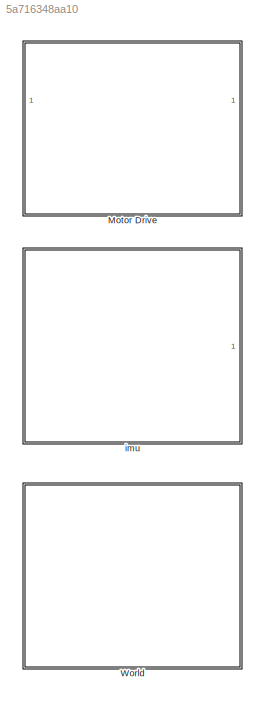
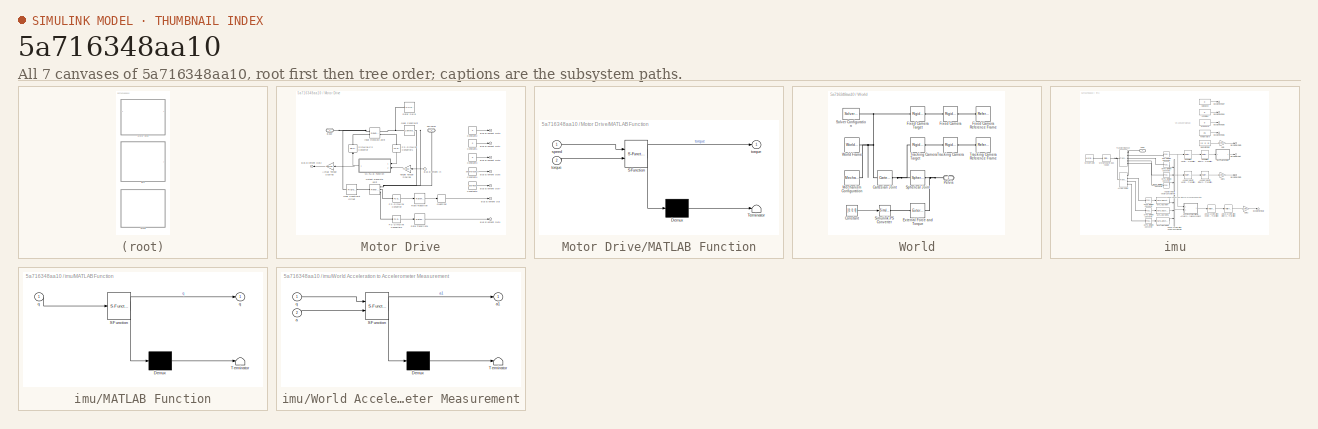
[diagram: thumbnail index - all 7 canvases of the model, root first then tree order]
MODEL slx_5a716348aa10
KIND model
CONFIG AbsTol = auto
CONFIG EnableMultiTasking = off
CONFIG FixedStep = auto
CONFIG MaxStep = auto
CONFIG MinStep = auto
CONFIG RelTol = 1e-3
CONFIG SampleTimeConstraint = Unconstrained
CONFIG Solver = VariableStepAuto
CONFIG SolverName = VariableStepAuto
CONFIG StartTime = 0.0
CONFIG StopTime = 10.0
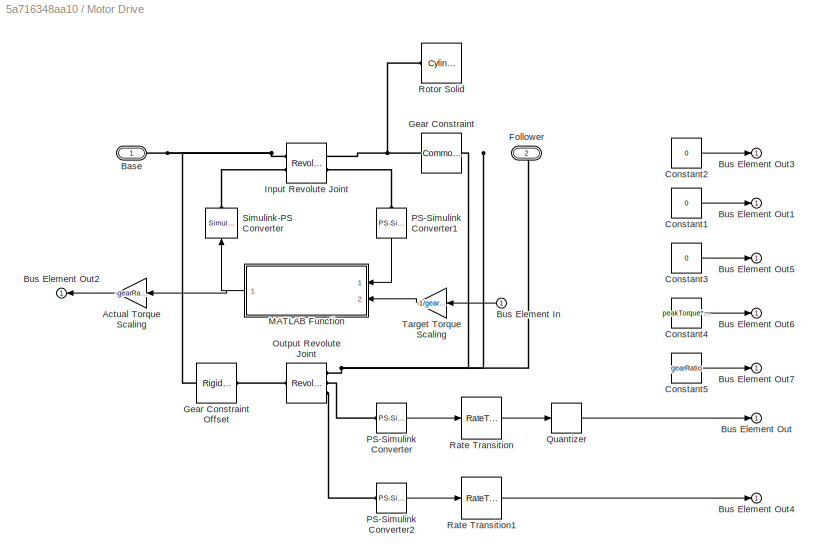
BLOCK [SubSystem] Motor Drive
  AncestorBlock = ComponentLibrary/Simulation/Elmo Drive
  Ports = [1, 1, 0, 0, 0, 1, 1]
  RequestExecContextInheritance = off
BLOCK [Gain] Motor Drive/Actual Torque Scaling
  Gain = -gearRatio
  OutDataTypeStr = Inherit: Inherit via internal rule
  ParamDataTypeStr = Inherit: Inherit via internal rule
  SaturateOnIntegerOverflow = off
BLOCK [PMIOPort] Motor Drive/Base
  Side = Left
BLOCK [Inport] Motor Drive/Bus Element In
  IconDisplay = Port number
BLOCK [Outport] Motor Drive/Bus Element Out
  IconDisplay = Port number
  VectorParamsAs1DForOutWhenUnconnected = off
BLOCK [Outport] Motor Drive/Bus Element Out1
  IconDisplay = Port number
  VectorParamsAs1DForOutWhenUnconnected = off
BLOCK [Outport] Motor Drive/Bus Element Out2
  IconDisplay = Port number
  VectorParamsAs1DForOutWhenUnconnected = off
BLOCK [Outport] Motor Drive/Bus Element Out3
  IconDisplay = Port number
  VectorParamsAs1DForOutWhenUnconnected = off
BLOCK [Outport] Motor Drive/Bus Element Out4
  IconDisplay = Port number
  VectorParamsAs1DForOutWhenUnconnected = off
BLOCK [Outport] Motor Drive/Bus Element Out5
  IconDisplay = Port number
  VectorParamsAs1DForOutWhenUnconnected = off
BLOCK [Outport] Motor Drive/Bus Element Out6
  IconDisplay = Port number
  VectorParamsAs1DForOutWhenUnconnected = off
BLOCK [Outport] Motor Drive/Bus Element Out7
  IconDisplay = Port number
  VectorParamsAs1DForOutWhenUnconnected = off
BLOCK [Constant] Motor Drive/Constant1
  Value = 0
BLOCK [Constant] Motor Drive/Constant2
  OutDataTypeStr = uint16
  Value = 0
BLOCK [Constant] Motor Drive/Constant3
  Value = 0
BLOCK [Constant] Motor Drive/Constant4
  Value = peakTorque*gearRatio
BLOCK [Constant] Motor Drive/Constant5
  Value = gearRatio
BLOCK [PMIOPort] Motor Drive/Follower
  Port = 2
  Side = Right
BLOCK [Reference] Motor Drive/Gear Constraint  REF=sm_lib/Gears and
Couplings/Gears/Common Gear
Constraint
  Ports = [0, 0, 0, 0, 0, 1, 1]
  SourceBlock = sm_lib/Gears and\nCouplings/Gears/Common Gear\nConstraint
  SourceProductBaseCode = MS
  SourceProductName = Simscape Multibody
  SourceType = Common Gear\nConstraint
BLOCK [Reference] Motor Drive/Gear Constraint Offset  REF=sm_lib/Frames and
Transforms/Rigid
Transform
  Ports = [0, 0, 0, 0, 0, 1, 1]
  SourceBlock = sm_lib/Frames and\nTransforms/Rigid\nTransform
  SourceProductBaseCode = MS
  SourceProductName = Simscape Multibody
  SourceType = Rigid\nTransform
BLOCK [Reference] Motor Drive/Input Revolute Joint  REF=sm_lib/Joints/Revolute Joint
  Ports = [0, 0, 0, 0, 0, 2, 2]
  SourceBlock = sm_lib/Joints/Revolute Joint
  SourceProductBaseCode = MS
  SourceProductName = Simscape Multibody
  SourceType = Revolute Joint
BLOCK [SubSystem] Motor Drive/MATLAB Function
  ErrorFcn = Stateflow.Translate.translate
  PermitHierarchicalResolution = ExplicitOnly
  Ports = [2, 1]
  RequestExecContextInheritance = off
  SFBlockType = MATLAB Function
  TreatAsAtomicUnit = on
BLOCK [Demux] Motor Drive/MATLAB Function/ Demux 
  Outputs = 1
  Ports = [1, 1]
BLOCK [S-Function] Motor Drive/MATLAB Function/ SFunction 
  EnableBusSupport = off
  FunctionName = sf_sfun
  Parameters = peakSpeed,peakTorque
  PortCounts = [2 2]
  Ports = [2, 2]
  SFcnIsStateOwnerBlock = off
  SFunctionDeploymentMode = off
  Tag = Stateflow S-Function 2
BLOCK [Terminator] Motor Drive/MATLAB Function/ Terminator 
BLOCK [Inport] Motor Drive/MATLAB Function/speed
  IconDisplay = Port number
BLOCK [Outport] Motor Drive/MATLAB Function/torque
  IconDisplay = Port number
  VectorParamsAs1DForOutWhenUnconnected = off
BLOCK [Inport] Motor Drive/MATLAB Function/torque 
  IconDisplay = Port number
  Port = 2
BLOCK [Reference] Motor Drive/Output Revolute Joint  REF=sm_lib/Joints/Revolute Joint
  Ports = [0, 0, 0, 0, 0, 1, 3]
  SourceBlock = sm_lib/Joints/Revolute Joint
  SourceProductBaseCode = MS
  SourceProductName = Simscape Multibody
  SourceType = Revolute Joint
BLOCK [Reference] Motor Drive/PS-Simulink Converter  REF=nesl_utility/PS-Simulink
Converter
  Ports = [0, 1, 0, 0, 0, 1]
  SourceBlock = nesl_utility/PS-Simulink\nConverter
  SourceProductBaseCode = SS
  SourceProductName = Simscape
  SourceType = PS-Simulink\nConverter
BLOCK [Reference] Motor Drive/PS-Simulink Converter1  REF=nesl_utility/PS-Simulink
Converter
  Ports = [0, 1, 0, 0, 0, 1]
  SourceBlock = nesl_utility/PS-Simulink\nConverter
  SourceProductBaseCode = SS
  SourceProductName = Simscape
  SourceType = PS-Simulink\nConverter
BLOCK [Reference] Motor Drive/PS-Simulink Converter2  REF=nesl_utility/PS-Simulink
Converter
  Ports = [0, 1, 0, 0, 0, 1]
  SourceBlock = nesl_utility/PS-Simulink\nConverter
  SourceProductBaseCode = SS
  SourceProductName = Simscape
  SourceType = PS-Simulink\nConverter
BLOCK [Quantizer] Motor Drive/Quantizer
  QuantizationInterval = (2*pi)/(encoderResolution*gearRatio)
BLOCK [RateTransition] Motor Drive/Rate Transition
  Deterministic = off
  InitialCondition = initialPosition
  OutPortSampleTimeOpt = Inherit
BLOCK [RateTransition] Motor Drive/Rate Transition1
  Deterministic = off
  InitialCondition = initialPosition
  OutPortSampleTimeOpt = Inherit
BLOCK [Reference] Motor Drive/Rotor Solid  REF=sm_lib/Body Elements/Cylindrical Solid
  Ports = [0, 0, 0, 0, 0, 0, 1]
  SourceBlock = sm_lib/Body Elements/Cylindrical Solid
  SourceProductBaseCode = MS
  SourceProductName = Simscape Multibody
  SourceType = Cylindrical Solid
BLOCK [Reference] Motor Drive/Simulink-PS Converter  REF=nesl_utility/Simulink-PS
Converter
  Ports = [1, 0, 0, 0, 0, 0, 1]
  SourceBlock = nesl_utility/Simulink-PS\nConverter
  SourceProductBaseCode = SS
  SourceProductName = Simscape
  SourceType = Simulink-PS\nConverter
BLOCK [Gain] Motor Drive/Target Torque Scaling
  Gain = -1/gearRatio
  OutDataTypeStr = Inherit: Inherit via internal rule
  ParamDataTypeStr = Inherit: Inherit via internal rule
  SaturateOnIntegerOverflow = off
BLOCK [SubSystem] World
  AncestorBlock = ComponentLibrary/Simulation/World
  Ports = [0, 0, 0, 0, 0, 0, 1]
  RequestExecContextInheritance = off
BLOCK [Reference] World/Cartesian Joint  REF=sm_lib/Joints/Cartesian
Joint
  Ports = [0, 0, 0, 0, 0, 1, 1]
  SourceBlock = sm_lib/Joints/Cartesian\nJoint
  SourceProductBaseCode = MS
  SourceProductName = Simscape Multibody
  SourceType = Cartesian\nJoint
BLOCK [Constant] World/Constant
  Value = [0; 0; 0]
BLOCK [Reference] World/External Force and Torque  REF=sm_lib/Forces and
Torques/External Force
and Torque
  Ports = [0, 0, 0, 0, 0, 1, 1]
  SourceBlock = sm_lib/Forces and\nTorques/External Force\nand Torque
  SourceProductBaseCode = MS
  SourceProductName = Simscape Multibody
  SourceType = External Force\nand Torque
BLOCK [Reference] World/Fixed Camera  REF=sm_lib/Frames and
Transforms/Rigid
Transform
  Ports = [0, 0, 0, 0, 0, 1, 1]
  SourceBlock = sm_lib/Frames and\nTransforms/Rigid\nTransform
  SourceProductBaseCode = MS
  SourceProductName = Simscape Multibody
  SourceType = Rigid\nTransform
BLOCK [Reference] World/Fixed Camera Reference Frame  REF=sm_lib/Frames and
Transforms/Reference
Frame
  Ports = [0, 0, 0, 0, 0, 0, 1]
  SourceBlock = sm_lib/Frames and\nTransforms/Reference\nFrame
  SourceProductBaseCode = MS
  SourceProductName = Simscape Multibody
  SourceType = Reference\nFrame
BLOCK [Reference] World/Fixed Camera Target  REF=sm_lib/Frames and
Transforms/Rigid
Transform
  Ports = [0, 0, 0, 0, 0, 1, 1]
  SourceBlock = sm_lib/Frames and\nTransforms/Rigid\nTransform
  SourceProductBaseCode = MS
  SourceProductName = Simscape Multibody
  SourceType = Rigid\nTransform
BLOCK [Reference] World/Mechanism Configuration  REF=sm_lib/Utilities/Mechanism
Configuration
  Ports = [0, 0, 0, 0, 0, 0, 1]
  SourceBlock = sm_lib/Utilities/Mechanism\nConfiguration
  SourceProductBaseCode = MS
  SourceProductName = Simscape Multibody
  SourceType = Mechanism\nConfiguration
BLOCK [PMIOPort] World/Pelvis
  Side = Right
BLOCK [Reference] World/Simulink-PS Converter  REF=nesl_utility/Simulink-PS
Converter
  Ports = [1, 0, 0, 0, 0, 0, 1]
  SourceBlock = nesl_utility/Simulink-PS\nConverter
  SourceProductBaseCode = SS
  SourceProductName = Simscape
  SourceType = Simulink-PS\nConverter
BLOCK [Reference] World/Solver Configuration  REF=nesl_utility/Solver
Configuration
  Ports = [0, 0, 0, 0, 0, 0, 1]
  SourceBlock = nesl_utility/Solver\nConfiguration
  SourceProductBaseCode = SS
  SourceProductName = Simscape
  SourceType = Solver\nConfiguration
BLOCK [Reference] World/Spherical Joint  REF=sm_lib/Joints/Spherical
Joint
  Ports = [0, 0, 0, 0, 0, 1, 1]
  SourceBlock = sm_lib/Joints/Spherical\nJoint
  SourceProductBaseCode = MS
  SourceProductName = Simscape Multibody
  SourceType = Spherical\nJoint
BLOCK [Reference] World/Tracking Camera  REF=sm_lib/Frames and
Transforms/Rigid
Transform
  Ports = [0, 0, 0, 0, 0, 1, 1]
  SourceBlock = sm_lib/Frames and\nTransforms/Rigid\nTransform
  SourceProductBaseCode = MS
  SourceProductName = Simscape Multibody
  SourceType = Rigid\nTransform
BLOCK [Reference] World/Tracking Camera Reference Frame  REF=sm_lib/Frames and
Transforms/Reference
Frame
  Ports = [0, 0, 0, 0, 0, 0, 1]
  SourceBlock = sm_lib/Frames and\nTransforms/Reference\nFrame
  SourceProductBaseCode = MS
  SourceProductName = Simscape Multibody
  SourceType = Reference\nFrame
BLOCK [Reference] World/Tracking Camera Target  REF=sm_lib/Frames and
Transforms/Rigid
Transform
  Ports = [0, 0, 0, 0, 0, 1, 1]
  SourceBlock = sm_lib/Frames and\nTransforms/Rigid\nTransform
  SourceProductBaseCode = MS
  SourceProductName = Simscape Multibody
  SourceType = Rigid\nTransform
BLOCK [Reference] World/World Frame  REF=sm_lib/Frames and
Transforms/World Frame
  Ports = [0, 0, 0, 0, 0, 0, 1]
  SourceBlock = sm_lib/Frames and\nTransforms/World Frame
  SourceProductBaseCode = MS
  SourceProductName = Simscape Multibody
  SourceType = World Frame
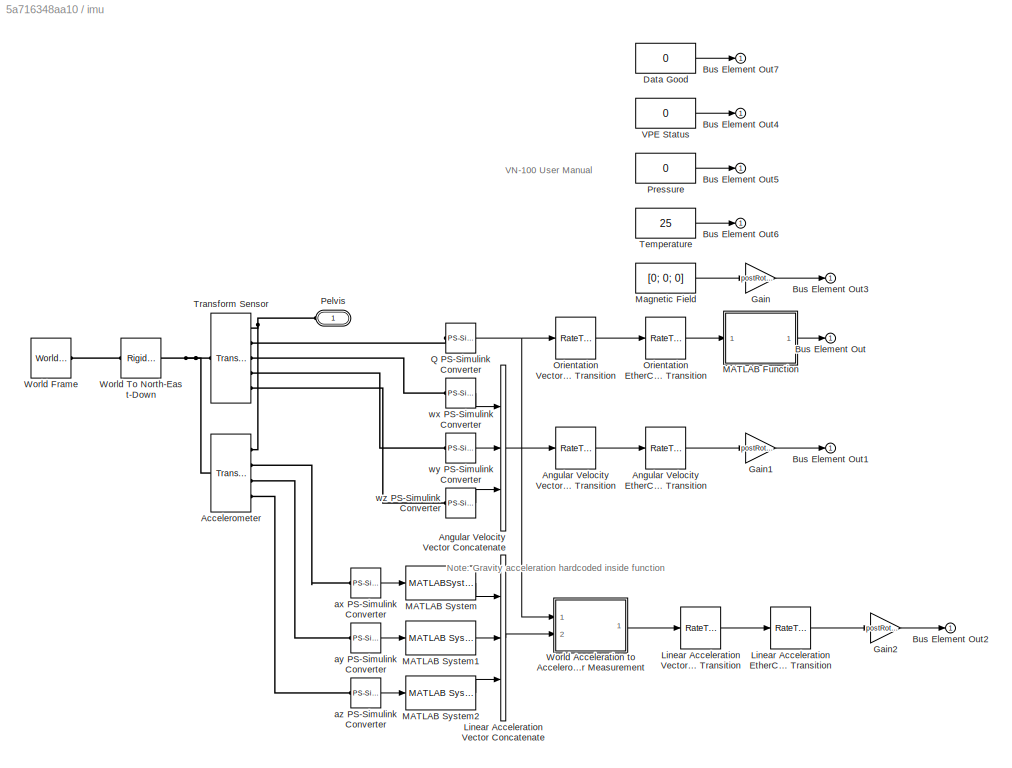
BLOCK [SubSystem] imu
  AncestorBlock = ComponentLibrary/Simulation/VectorNav
  Ports = [0, 1, 0, 0, 0, 1]
  RequestExecContextInheritance = off
BLOCK [Reference] imu/Accelerometer  REF=sm_lib/Frames and
Transforms/Transform
Sensor
  Ports = [0, 0, 0, 0, 0, 1, 4]
  SourceBlock = sm_lib/Frames and\nTransforms/Transform\nSensor
  SourceProductBaseCode = MS
  SourceProductName = Simscape Multibody
  SourceType = Transform\nSensor
BLOCK [RateTransition] imu/Angular Velocity EtherCAT Rate Transition
  Deterministic = off
  OutPortSampleTimeOpt = Inherit
BLOCK [Concatenate] imu/Angular Velocity Vector Concatenate
  NumInputs = 3
  Ports = [3, 1]
BLOCK [RateTransition] imu/Angular Velocity VectorNav Rate Transition
  Deterministic = off
  OutPortSampleTime = VectorNavModule.sampleTime
BLOCK [Outport] imu/Bus Element Out
  IconDisplay = Port number
  VectorParamsAs1DForOutWhenUnconnected = off
BLOCK [Outport] imu/Bus Element Out1
  IconDisplay = Port number
  VectorParamsAs1DForOutWhenUnconnected = off
BLOCK [Outport] imu/Bus Element Out2
  IconDisplay = Port number
  VectorParamsAs1DForOutWhenUnconnected = off
BLOCK [Outport] imu/Bus Element Out3
  IconDisplay = Port number
  VectorParamsAs1DForOutWhenUnconnected = off
BLOCK [Outport] imu/Bus Element Out4
  IconDisplay = Port number
  VectorParamsAs1DForOutWhenUnconnected = off
BLOCK [Outport] imu/Bus Element Out5
  IconDisplay = Port number
  VectorParamsAs1DForOutWhenUnconnected = off
BLOCK [Outport] imu/Bus Element Out6
  IconDisplay = Port number
  VectorParamsAs1DForOutWhenUnconnected = off
BLOCK [Outport] imu/Bus Element Out7
  IconDisplay = Port number
  VectorParamsAs1DForOutWhenUnconnected = off
BLOCK [Constant] imu/Data Good
  OutDataTypeStr = boolean
  Value = 0
BLOCK [Gain] imu/Gain
  Gain = postRotationMatrix
  Multiplication = Matrix(K*u)
  OutDataTypeStr = Inherit: Inherit via internal rule
  ParamDataTypeStr = Inherit: Inherit via internal rule
  SaturateOnIntegerOverflow = off
BLOCK [Gain] imu/Gain1
  Gain = postRotationMatrix
  Multiplication = Matrix(K*u)
  OutDataTypeStr = Inherit: Inherit via internal rule
  ParamDataTypeStr = Inherit: Inherit via internal rule
  SaturateOnIntegerOverflow = off
BLOCK [Gain] imu/Gain2
  Gain = postRotationMatrix
  Multiplication = Matrix(K*u)
  OutDataTypeStr = Inherit: Inherit via internal rule
  ParamDataTypeStr = Inherit: Inherit via internal rule
  SaturateOnIntegerOverflow = off
BLOCK [RateTransition] imu/Linear Acceleration EtherCAT Rate Transition
  Deterministic = off
  InitialCondition = [0; 0; 0]
  OutPortSampleTimeOpt = Inherit
BLOCK [Concatenate] imu/Linear Acceleration Vector Concatenate
  NumInputs = 3
  Ports = [3, 1]
BLOCK [RateTransition] imu/Linear Acceleration VectorNav Rate Transition
  Deterministic = off
  InitialCondition = [0; 0; 0]
  OutPortSampleTime = VectorNavModule.sampleTime
BLOCK [SubSystem] imu/MATLAB Function
  ErrorFcn = Stateflow.Translate.translate
  PermitHierarchicalResolution = ExplicitOnly
  Ports = [1, 1]
  RequestExecContextInheritance = off
  SFBlockType = MATLAB Function
  TreatAsAtomicUnit = on
BLOCK [Demux] imu/MATLAB Function/ Demux 
  Outputs = 1
  Ports = [1, 1]
BLOCK [S-Function] imu/MATLAB Function/ SFunction 
  EnableBusSupport = off
  FunctionName = sf_sfun
  Parameters = postRotationMatrix,preRotationMatrix
  PortCounts = [1 2]
  Ports = [1, 2]
  SFcnIsStateOwnerBlock = off
  SFunctionDeploymentMode = off
  Tag = Stateflow S-Function 7
BLOCK [Terminator] imu/MATLAB Function/ Terminator 
BLOCK [Outport] imu/MATLAB Function/q
  IconDisplay = Port number
  VectorParamsAs1DForOutWhenUnconnected = off
BLOCK [Inport] imu/MATLAB Function/q 
  IconDisplay = Port number
BLOCK [MATLABSystem] imu/MATLAB System
  MaskDisplay = disp('Filter');
  MaskType = FilterSystem
  Ports = [1, 1]
  SimulateUsing = Code generation
  System = FilterSystem
  a = [1 -0.8]
  b = 0.2
BLOCK [Reference] imu/MATLAB System1  REF=ComponentLibrary/Simulation/VectorNav/MATLAB System
  Ports = [1, 1]
  SourceBlock = ComponentLibrary/Simulation/VectorNav/MATLAB System
  SourceType = FilterSystem
BLOCK [Reference] imu/MATLAB System2  REF=ComponentLibrary/Simulation/VectorNav/MATLAB System
  Ports = [1, 1]
  SourceBlock = ComponentLibrary/Simulation/VectorNav/MATLAB System
  SourceType = FilterSystem
BLOCK [Constant] imu/Magnetic Field
  Value = [0; 0; 0]
BLOCK [RateTransition] imu/Orientation EtherCAT Rate Transition
  Deterministic = off
  InitialCondition = [0; 0; 0; 1]
  OutPortSampleTimeOpt = Inherit
BLOCK [RateTransition] imu/Orientation VectorNav Rate Transition
  Deterministic = off
  InitialCondition = [0; 0; 0; 1]
  OutPortSampleTime = VectorNavModule.sampleTime
BLOCK [PMIOPort] imu/Pelvis
  Side = Left
BLOCK [Constant] imu/Pressure
  Value = 0
BLOCK [Reference] imu/Q PS-Simulink Converter  REF=nesl_utility/PS-Simulink
Converter
  Ports = [0, 1, 0, 0, 0, 1]
  SourceBlock = nesl_utility/PS-Simulink\nConverter
  SourceProductBaseCode = SS
  SourceProductName = Simscape
  SourceType = PS-Simulink\nConverter
BLOCK [Constant] imu/Temperature
  Value = 25
BLOCK [Reference] imu/Transform Sensor  REF=sm_lib/Frames and
Transforms/Transform
Sensor
  Ports = [0, 0, 0, 0, 0, 1, 5]
  SourceBlock = sm_lib/Frames and\nTransforms/Transform\nSensor
  SourceProductBaseCode = MS
  SourceProductName = Simscape Multibody
  SourceType = Transform\nSensor
BLOCK [Constant] imu/VPE Status
  OutDataTypeStr = uint16
  Value = 0
BLOCK [SubSystem] imu/World Acceleration to Accelerometer Measurement
  ErrorFcn = Stateflow.Translate.translate
  PermitHierarchicalResolution = ExplicitOnly
  Ports = [2, 1]
  RequestExecContextInheritance = off
  SFBlockType = MATLAB Function
  TreatAsAtomicUnit = on
BLOCK [Demux] imu/World Acceleration to Accelerometer Measurement/ Demux 
  Outputs = 1
  Ports = [1, 1]
BLOCK [S-Function] imu/World Acceleration to Accelerometer Measurement/ SFunction 
  EnableBusSupport = off
  FunctionName = sf_sfun
  PortCounts = [2 2]
  Ports = [2, 2]
  SFcnIsStateOwnerBlock = off
  SFunctionDeploymentMode = off
  Tag = Stateflow S-Function 10
BLOCK [Terminator] imu/World Acceleration to Accelerometer Measurement/ Terminator 
BLOCK [Inport] imu/World Acceleration to Accelerometer Measurement/a
  IconDisplay = Port number
  Port = 2
BLOCK [Outport] imu/World Acceleration to Accelerometer Measurement/a1
  IconDisplay = Port number
  VectorParamsAs1DForOutWhenUnconnected = off
BLOCK [Inport] imu/World Acceleration to Accelerometer Measurement/q
  IconDisplay = Port number
BLOCK [Reference] imu/World Frame  REF=sm_lib/Frames and
Transforms/World Frame
  Ports = [0, 0, 0, 0, 0, 0, 1]
  SourceBlock = sm_lib/Frames and\nTransforms/World Frame
  SourceProductBaseCode = MS
  SourceProductName = Simscape Multibody
  SourceType = World Frame
BLOCK [Reference] imu/World To North-East-Down  REF=sm_lib/Frames and
Transforms/Rigid
Transform
  Ports = [0, 0, 0, 0, 0, 1, 1]
  SourceBlock = sm_lib/Frames and\nTransforms/Rigid\nTransform
  SourceProductBaseCode = MS
  SourceProductName = Simscape Multibody
  SourceType = Rigid\nTransform
BLOCK [Reference] imu/ax PS-Simulink Converter  REF=nesl_utility/PS-Simulink
Converter
  Ports = [0, 1, 0, 0, 0, 1]
  SourceBlock = nesl_utility/PS-Simulink\nConverter
  SourceProductBaseCode = SS
  SourceProductName = Simscape
  SourceType = PS-Simulink\nConverter
BLOCK [Reference] imu/ay PS-Simulink Converter  REF=nesl_utility/PS-Simulink
Converter
  Ports = [0, 1, 0, 0, 0, 1]
  SourceBlock = nesl_utility/PS-Simulink\nConverter
  SourceProductBaseCode = SS
  SourceProductName = Simscape
  SourceType = PS-Simulink\nConverter
BLOCK [Reference] imu/az PS-Simulink Converter  REF=nesl_utility/PS-Simulink
Converter
  Ports = [0, 1, 0, 0, 0, 1]
  SourceBlock = nesl_utility/PS-Simulink\nConverter
  SourceProductBaseCode = SS
  SourceProductName = Simscape
  SourceType = PS-Simulink\nConverter
BLOCK [Reference] imu/wx PS-Simulink Converter  REF=nesl_utility/PS-Simulink
Converter
  Ports = [0, 1, 0, 0, 0, 1]
  SourceBlock = nesl_utility/PS-Simulink\nConverter
  SourceProductBaseCode = SS
  SourceProductName = Simscape
  SourceType = PS-Simulink\nConverter
BLOCK [Reference] imu/wy PS-Simulink Converter  REF=nesl_utility/PS-Simulink
Converter
  Ports = [0, 1, 0, 0, 0, 1]
  SourceBlock = nesl_utility/PS-Simulink\nConverter
  SourceProductBaseCode = SS
  SourceProductName = Simscape
  SourceType = PS-Simulink\nConverter
BLOCK [Reference] imu/wz PS-Simulink Converter  REF=nesl_utility/PS-Simulink
Converter
  Ports = [0, 1, 0, 0, 0, 1]
  SourceBlock = nesl_utility/PS-Simulink\nConverter
  SourceProductBaseCode = SS
  SourceProductName = Simscape
  SourceType = PS-Simulink\nConverter
ANNOTATION imu: VN-100 User Manual
ANNOTATION imu: Note: Gravity acceleration hardcoded inside function
CHART Motor Drive/MATLAB Function states=1 transitions=1
  STATE_LABEL 'eML_blk_kernel()'
  STATE_LABEL 'SCRIPT:\nfunction torque = fcn(speed, torque, peakTorque, peakSpeed) %#codegen\n\n  % Cap the velocity at the specified limits to avoid extrapolation\n  speed = median([-peakSpeed, speed, peakSpeed]);\n\n  % Linear interpolation of speed-torque curve\n  torqueLimit = interp1(...\n    [0, 0.5*peakSpeed, peakSpeed], ...\n    [peakTorque, peakTorque, 0], ...\n    abs(speed));\n\n  % Cap the torque command at the...<+82ch>'
CHART imu/MATLAB Function states=1 transitions=1
  STATE_LABEL 'eML_blk_kernel()'
  STATE_LABEL 'SCRIPT:\nfunction q = fcn(q, preRotationMatrix, postRotationMatrix)\n  % Construct constant rotation matrix objects\n  R0 = coder.const(Rotation3d(preRotationMatrix));\n  R2 = coder.const(Rotation3d(postRotationMatrix));\n  \n  % Convert rotation matrices into constant quaternion objects\n  Q0 = coder.const(R0.getQuaternion);\n  Q2 = coder.const(R2.getQuaternion);\n  \n  % Apply pre and post rotations\n  Q1 ...<+94ch>'
CHART imu/World Acceleration to 
Accelerometer Measurement states=1 transitions=1
  STATE_LABEL 'eML_blk_kernel()'
  STATE_LABEL "SCRIPT:\nfunction a1 = fcn(q, a)\n  % Construct quaternion object\n  Q = Quaternion(q);\n  \n  % Add world gravity acceleration to body acceleration\n  a1 = Q.getRotation.getValue'*(a + [0; 0; -9.806]);\nend % fcn\n"
